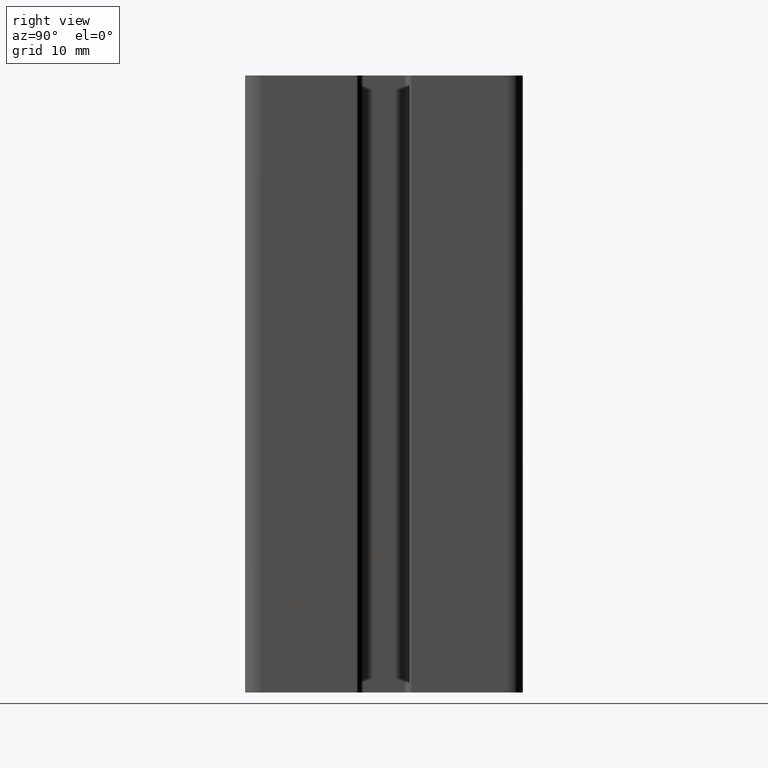
[diagram: clean part render]
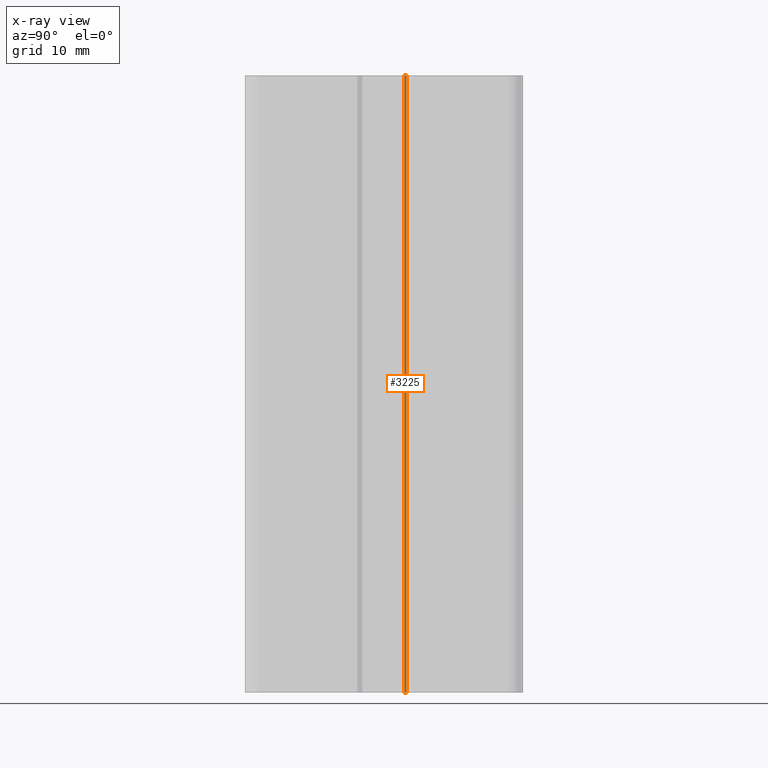
[diagram: x-ray — body ghosted, one internal face saturated and labeled with its STEP entity id]
A machine part, right view, then the same camera in x-ray: the body is ghosted and one INTERNAL B-rep face — a face not visible from any outside direction — is saturated and labeled: STEP entity #3225.
In plain terms, the highlighted cylindrical surface (edge-blend (fillet) strip) has radius 0.5 mm, axis along (0, 0, 1).
Its self-contained STEP definition (entity closure, byte-faithful):
#120=CIRCLE('',#3485,0.5);
#121=CIRCLE('',#3486,0.5);
#269=CYLINDRICAL_SURFACE('',#3484,0.5);
#394=FACE_OUTER_BOUND('',#562,.T.);
#562=EDGE_LOOP('',(#2384,#2385,#2386,#2387));
#798=LINE('',#5149,#1098);
#799=LINE('',#5152,#1099);
#1098=VECTOR('',#4142,100.);
#1099=VECTOR('',#4145,100.);
#1416=VERTEX_POINT('',#5145);
#1417=VERTEX_POINT('',#5146);
#1418=VERTEX_POINT('',#5148);
#1419=VERTEX_POINT('',#5150);
#1818=EDGE_CURVE('',#1416,#1417,#120,.T.);
#1819=EDGE_CURVE('',#1418,#1416,#798,.T.);
#1820=EDGE_CURVE('',#1419,#1418,#121,.T.);
#1821=EDGE_CURVE('',#1419,#1417,#799,.T.);
#2384=ORIENTED_EDGE('',*,*,#1818,.F.);
#2385=ORIENTED_EDGE('',*,*,#1819,.F.);
#2386=ORIENTED_EDGE('',*,*,#1820,.F.);
#2387=ORIENTED_EDGE('',*,*,#1821,.T.);
#3225=ADVANCED_FACE('',(#394),#269,.F.);
#3484=AXIS2_PLACEMENT_3D('',#5144,#4138,#4139);
#3485=AXIS2_PLACEMENT_3D('',#5147,#4140,#4141);
#3486=AXIS2_PLACEMENT_3D('',#5151,#4143,#4144);
#4138=DIRECTION('center_axis',(0.,0.,1.));
#4139=DIRECTION('ref_axis',(-0.707106781186721,0.707106781186374,0.));
#4140=DIRECTION('center_axis',(0.,0.,-1.));
#4141=DIRECTION('ref_axis',(-0.707106781186721,0.707106781186374,0.));
#4142=DIRECTION('',(0.,0.,1.));
#4143=DIRECTION('center_axis',(0.,0.,1.));
#4144=DIRECTION('ref_axis',(-0.707106781186721,0.707106781186374,0.));
#4145=DIRECTION('',(0.,0.,1.));
#5144=CARTESIAN_POINT('Origin',(6.15000000000251,3.32157287525864,0.));
#5145=CARTESIAN_POINT('',(5.6500000000025,3.32157287525871,100.));
#5146=CARTESIAN_POINT('',(5.79644660940914,3.67512626585183,100.));
#5147=CARTESIAN_POINT('Origin',(6.15000000000251,3.32157287525864,100.));
#5148=CARTESIAN_POINT('',(5.6500000000025,3.32157287525871,0.));
#5149=CARTESIAN_POINT('',(5.6500000000025,3.32157287525871,0.));
#5150=CARTESIAN_POINT('',(5.79644660940914,3.67512626585183,0.));
#5151=CARTESIAN_POINT('Origin',(6.15000000000251,3.32157287525864,0.));
#5152=CARTESIAN_POINT('',(5.79644660940914,3.67512626585183,0.));